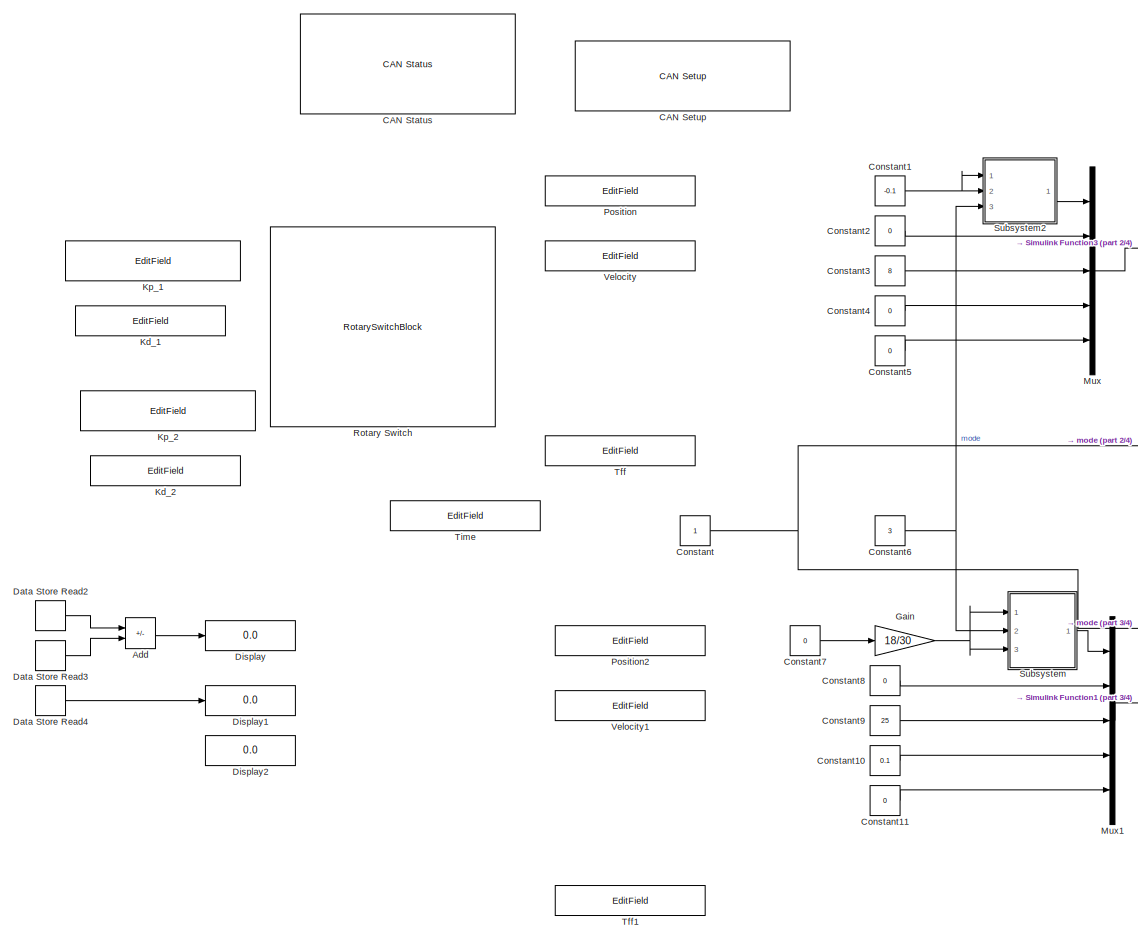
[diagram: root canvas - part 1/4, top left region]
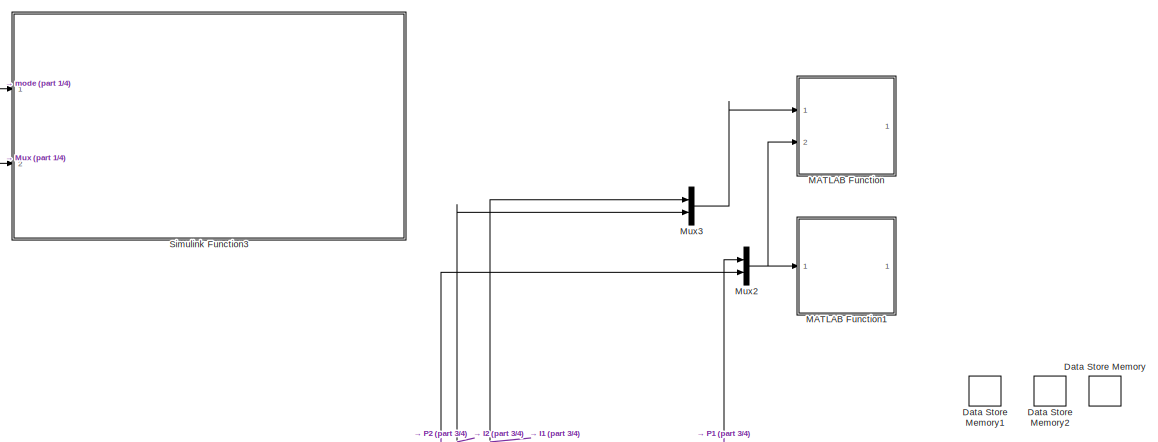
[diagram: root canvas - part 2/4, top right region]
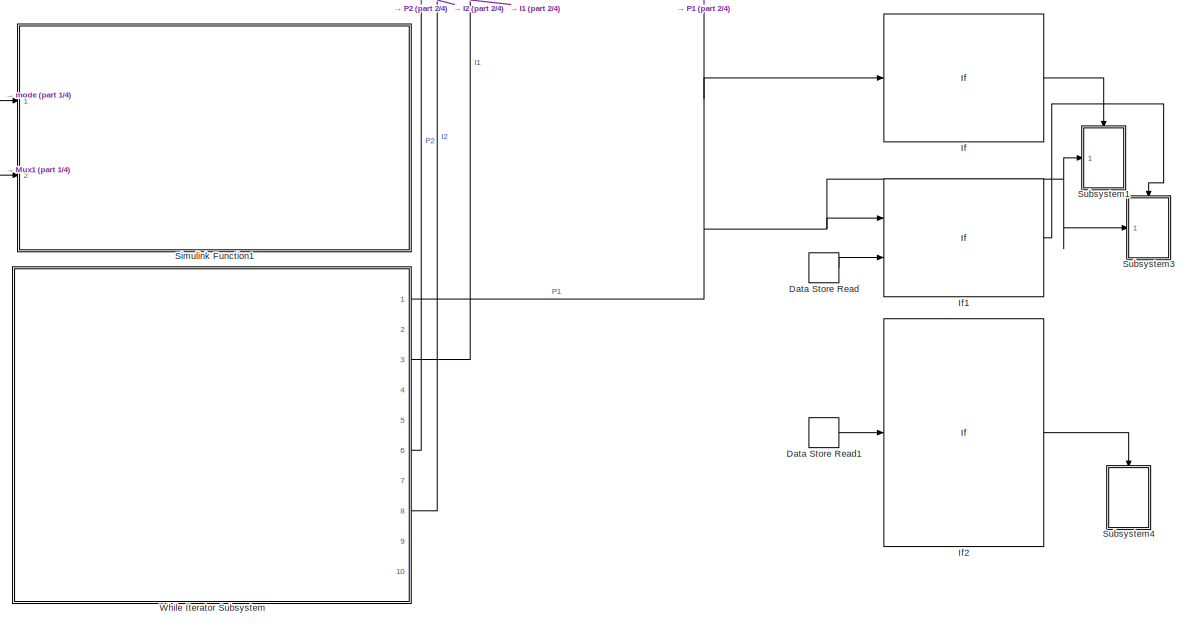
[diagram: root canvas - part 3/4, middle right region]
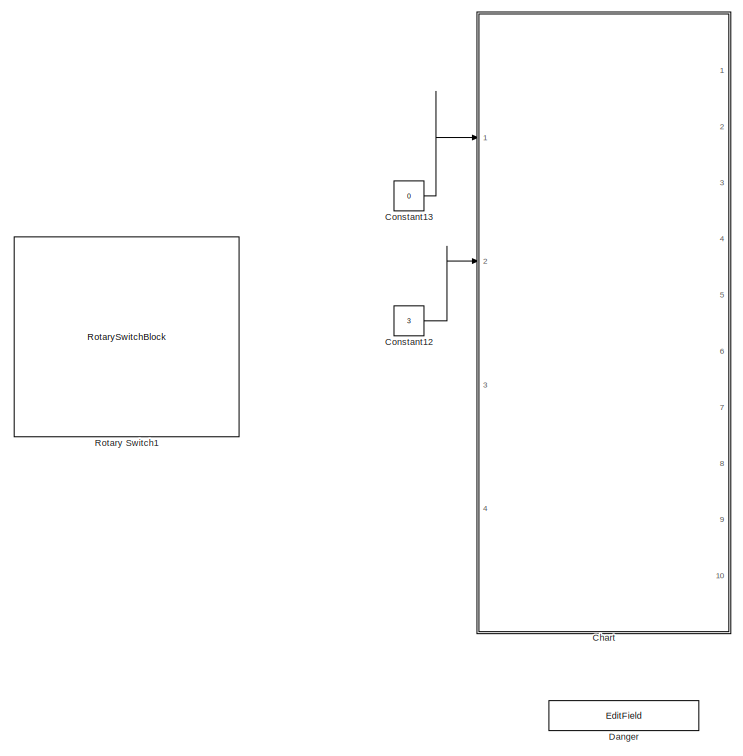
[diagram: root canvas - part 4/4, bottom left region]
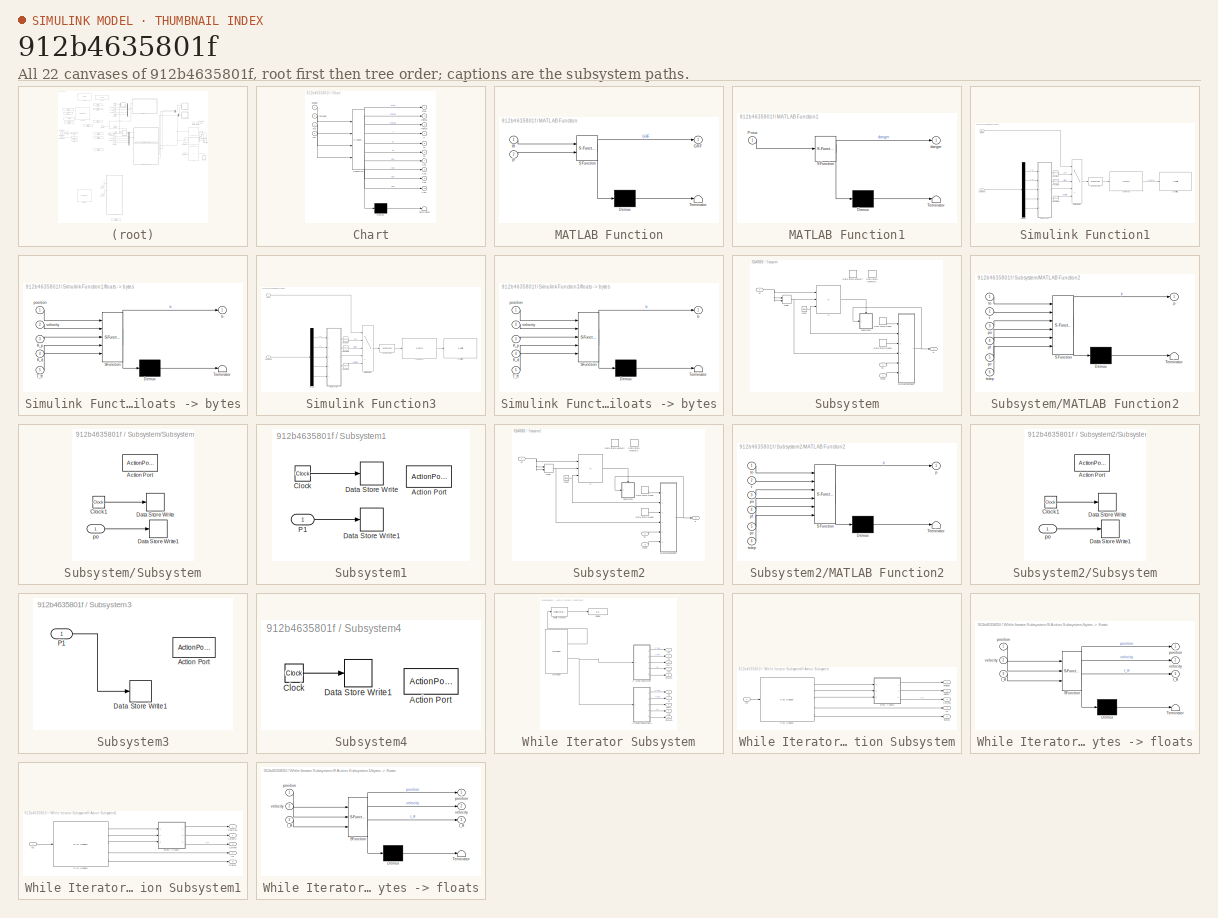
[diagram: thumbnail index - all 22 canvases of the model, root first then tree order]
MODEL slx_912b4635801f
KIND model
CONFIG AbsTol = auto
CONFIG EnableMultiTasking = off
CONFIG FixedStep = .001
CONFIG MaxStep = auto
CONFIG MinStep = auto
CONFIG RelTol = 1e-3
CONFIG SampleTimeConstraint = Unconstrained
CONFIG SolverName = FixedStepAuto
CONFIG StartTime = 0.0
CONFIG StopTime = inf
BLOCK [Sum] Add
  IconShape = rectangular
  Inputs = +-
  Ports = [2, 1]
BLOCK [Reference] CAN Setup   REF=speedgoatlib_IO691/CAN Setup 
  Ports = []
  SourceBlock = speedgoatlib_IO691/CAN Setup
  SourceProductName = Simulink Real-Time: Speedgoat I/O Blockset
  SourceType = setup_IO691
BLOCK [Reference] CAN Status  REF=speedgoatlib_IO691/CAN Status
  Ports = []
  SourceBlock = speedgoatlib_IO691/CAN Status
  SourceProductName = Simulink Real-Time: Speedgoat I/O Blockset
  SourceType = status_IO691
  UserDataPersistent = on
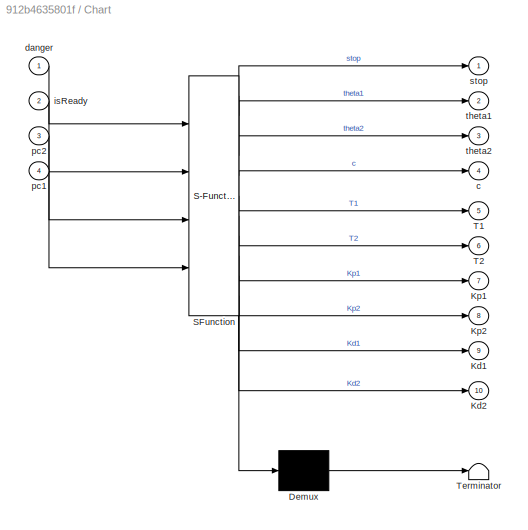
BLOCK [SubSystem] Chart
  ErrorFcn = Stateflow.Translate.translate
  PermitHierarchicalResolution = ExplicitOnly
  PortSchema = {"entries":[{"content":{"sides":[{"content":{"connectorIds":["In1","In2","In3","In4"]},"type":"ConnectorPlacement.EquallySpacedRectSide","uuid":"09499f21-f50c-4ce4-914e-8b9942bcc246"},{"content":{"connectorIds":["Out2","Out7","Out9","Out5","Out1","Out4","Out3","Out8","Out10","Out6"],"side":"RIGHT"},"type":"ConnectorPlacement.EquallySpacedRectSide","uuid":"b935e908-ace3-4dfb-ad6d-08dfed6ffdb3"},{"c...<+322ch>
  Ports = [4, 10]
  RequestExecContextInheritance = off
  SFBlockType = Chart
  TreatAsAtomicUnit = on
BLOCK [Demux] Chart/ Demux 
  Outputs = 1
  Ports = [1, 1]
BLOCK [S-Function] Chart/ SFunction 
  EnableBusSupport = on
  FunctionName = sf_sfun
  PortCounts = [4 11]
  Ports = [4, 11]
  SFcnIsStateOwnerBlock = off
  SFunctionDeploymentMode = off
  Tag = Stateflow S-Function 8
BLOCK [Terminator] Chart/ Terminator 
BLOCK [Outport] Chart/Kd1
  Port = 9
BLOCK [Outport] Chart/Kd2
  Port = 10
BLOCK [Outport] Chart/Kp1
  Port = 7
BLOCK [Outport] Chart/Kp2
  Port = 8
BLOCK [Outport] Chart/T1
  Port = 5
BLOCK [Outport] Chart/T2
  Port = 6
BLOCK [Outport] Chart/c
  Port = 4
BLOCK [Inport] Chart/danger
BLOCK [Inport] Chart/isReady
  Port = 2
BLOCK [Inport] Chart/pc1
  Port = 4
BLOCK [Inport] Chart/pc2
  Port = 3
BLOCK [Outport] Chart/stop
BLOCK [Outport] Chart/theta1
  Port = 2
BLOCK [Outport] Chart/theta2
  Port = 3
BLOCK [Constant] Constant
BLOCK [Constant] Constant1
  Value = -0.1
BLOCK [Constant] Constant10
  Value = 0.1
BLOCK [Constant] Constant11
  Value = 0
BLOCK [Constant] Constant12
  Value = 3
BLOCK [Constant] Constant13
  Value = 0
BLOCK [Constant] Constant2
  Value = 0
BLOCK [Constant] Constant3
  Value = 8
BLOCK [Constant] Constant4
  Value = 0
BLOCK [Constant] Constant5
  Value = 0
BLOCK [Constant] Constant6
  Value = 3
BLOCK [Constant] Constant7
  Value = 0
BLOCK [Constant] Constant8
  Value = 0
BLOCK [Constant] Constant9
  Value = 25
BLOCK [EditField] Danger
  Alignment = Center
  LabelPosition = Hide
  ShowInitialText = on
BLOCK [DataStoreMemory] Data Store Memory
  DataStoreName = to
  ReadBeforeWriteMsg = warning
  ShowAdditionalParam = off
  WriteAfterReadMsg = warning
  WriteAfterWriteMsg = warning
BLOCK [DataStoreMemory] Data Store Memory1
  DataStoreName = OS
  ReadBeforeWriteMsg = warning
  ShowAdditionalParam = off
  WriteAfterReadMsg = warning
  WriteAfterWriteMsg = warning
BLOCK [DataStoreMemory] Data Store Memory2
  DataStoreName = tf
  ReadBeforeWriteMsg = warning
  ShowAdditionalParam = off
  WriteAfterReadMsg = warning
  WriteAfterWriteMsg = warning
BLOCK [DataStoreRead] Data Store Read
  DataStoreName = OS
  IndexOptions = Index vector (dialog)
  Indices = 1
  OutputSizes = 1
  Ports = [0, 1]
BLOCK [DataStoreRead] Data Store Read1
  DataStoreName = OS
  IndexOptions = Index vector (dialog)
  Indices = 1
  OutputSizes = 1
  Ports = [0, 1]
BLOCK [DataStoreRead] Data Store Read2
  DataStoreName = tf
  IndexOptions = Index vector (dialog)
  Indices = 1
  OutputSizes = 1
  Ports = [0, 1]
BLOCK [DataStoreRead] Data Store Read3
  DataStoreName = to
  IndexOptions = Index vector (dialog)
  Indices = 1
  OutputSizes = 1
  Ports = [0, 1]
BLOCK [DataStoreRead] Data Store Read4
  DataStoreName = OS
  IndexOptions = Index vector (dialog)
  Indices = 1
  OutputSizes = 1
  Ports = [0, 1]
BLOCK [Display] Display
  Decimation = 1
  Ports = [1]
BLOCK [Display] Display1
  Decimation = 1
  Ports = [1]
BLOCK [Display] Display2
  Decimation = 1
  Ports = [1]
BLOCK [Gain] Gain
  Gain = 18/30
BLOCK [If] If
  Ports = [1, 1]
  ShowElse = off
BLOCK [If] If1
  IfExpression = u1 < u2
  NumInputs = 2
  Ports = [2, 1]
  ShowElse = off
BLOCK [If] If2
  Ports = [1, 1]
  ShowElse = off
BLOCK [EditField] Kd_1
  Alignment = Center
  LabelPosition = Hide
  ShowInitialText = on
BLOCK [EditField] Kd_2
  Alignment = Center
  LabelPosition = Hide
  ShowInitialText = on
BLOCK [EditField] Kp_1
  Alignment = Center
  LabelPosition = Hide
  ShowInitialText = on
BLOCK [EditField] Kp_2
  Alignment = Center
  LabelPosition = Hide
  ShowInitialText = on
BLOCK [SubSystem] MATLAB Function
  ErrorFcn = Stateflow.Translate.translate
  PermitHierarchicalResolution = ExplicitOnly
  Ports = [2, 1]
  RequestExecContextInheritance = off
  SFBlockType = MATLAB Function
  TreatAsAtomicUnit = on
BLOCK [Demux] MATLAB Function/ Demux 
  Outputs = 1
  Ports = [1, 1]
BLOCK [S-Function] MATLAB Function/ SFunction 
  EnableBusSupport = on
  FunctionName = sf_sfun
  PortCounts = [2 2]
  Ports = [2, 2]
  SFcnIsStateOwnerBlock = off
  SFunctionDeploymentMode = off
  Tag = Stateflow S-Function 4
BLOCK [Terminator] MATLAB Function/ Terminator 
BLOCK [Outport] MATLAB Function/GRF
BLOCK [Inport] MATLAB Function/Iff
BLOCK [Inport] MATLAB Function/P
  Port = 2
BLOCK [SubSystem] MATLAB Function1
  ErrorFcn = Stateflow.Translate.translate
  PermitHierarchicalResolution = ExplicitOnly
  Ports = [1, 1]
  RequestExecContextInheritance = off
  SFBlockType = MATLAB Function
  TreatAsAtomicUnit = on
BLOCK [Demux] MATLAB Function1/ Demux 
  Outputs = 1
  Ports = [1, 1]
BLOCK [S-Function] MATLAB Function1/ SFunction 
  EnableBusSupport = on
  FunctionName = sf_sfun
  PortCounts = [1 2]
  Ports = [1, 2]
  SFcnIsStateOwnerBlock = off
  SFunctionDeploymentMode = off
  Tag = Stateflow S-Function 6
BLOCK [Terminator] MATLAB Function1/ Terminator 
BLOCK [Inport] MATLAB Function1/Pmux
BLOCK [Outport] MATLAB Function1/danger
BLOCK [Mux] Mux
  DisplayOption = bar
  Inputs = 5
  Ports = [5, 1]
BLOCK [Mux] Mux1
  DisplayOption = bar
  Inputs = 5
  Ports = [5, 1]
BLOCK [Mux] Mux2
  DisplayOption = bar
  Inputs = 2
  Ports = [2, 1]
BLOCK [Mux] Mux3
  DisplayOption = bar
  Inputs = 2
  Ports = [2, 1]
BLOCK [EditField] Position
  Alignment = Center
  LabelPosition = Hide
  ShowInitialText = on
BLOCK [EditField] Position2
  Alignment = Center
  LabelPosition = Hide
  ShowInitialText = on
BLOCK [RotarySwitchBlock] Rotary Switch
BLOCK [RotarySwitchBlock] Rotary Switch1
BLOCK [SubSystem] Simulink Function1
  Ports = [2]
  RequestExecContextInheritance = off
  TreatAsAtomicUnit = on
BLOCK [Reference] Simulink Function1/Byte Packing  REF=slrealtimeutilitieslib/Byte Packing
  Ports = [1, 1]
  SourceBlock = slrealtimeutilitieslib/Byte Packing
  SourceProductBaseCode = XP
  SourceType = slrealtimebytepacking
BLOCK [Reference] Simulink Function1/CAN Pack1  REF=canmsglib/CAN Pack
  Ports = [1, 1]
  SourceBlock = canmsglib/CAN Pack
  SourceProductBaseCode = ME,XP,VN
  SourceType = CAN Pack
BLOCK [Reference] Simulink Function1/CAN Write1  REF=speedgoatlib_IO691/CAN Write
  Ports = [1]
  SourceBlock = speedgoatlib_IO691/CAN Write
  SourceProductName = Simulink Real-Time: Speedgoat I/O Blockset
  SourceType = write_IO691
BLOCK [Inport] Simulink Function1/Command
  Port = 2
BLOCK [Constant] Simulink Function1/Constant
  Value = [0xFF, 0xFF, 0xFF, 0xFF, 0xFF, 0xFF, 0xFF, 0xFE]
BLOCK [Constant] Simulink Function1/Constant1
  Value = [0xFF, 0xFF, 0xFF, 0xFF, 0xFF, 0xFF, 0xFF, 0xFC]
BLOCK [Constant] Simulink Function1/Constant2
  Value = [0xFF, 0xFF, 0xFF, 0xFF, 0xFF, 0xFF, 0xFF, 0xFD]
BLOCK [Demux] Simulink Function1/Demux
  Outputs = 5
  Ports = [1, 5]
BLOCK [Inport] Simulink Function1/Mode
BLOCK [MultiPortSwitch] Simulink Function1/Multiport Switch
  InputSameDT = off
  Inputs = 4
  Ports = [5, 1]
  SaturateOnIntegerOverflow = off
BLOCK [SubSystem] Simulink Function1/floats -> bytes
  ErrorFcn = Stateflow.Translate.translate
  PermitHierarchicalResolution = ExplicitOnly
  Ports = [5, 1]
  RequestExecContextInheritance = off
  SFBlockType = MATLAB Function
  TreatAsAtomicUnit = on
BLOCK [Demux] Simulink Function1/floats -> bytes/ Demux 
  Outputs = 1
  Ports = [1, 1]
BLOCK [S-Function] Simulink Function1/floats -> bytes/ SFunction 
  EnableBusSupport = on
  FunctionName = sf_sfun
  PortCounts = [5 2]
  Ports = [5, 2]
  SFcnIsStateOwnerBlock = off
  SFunctionDeploymentMode = off
  Tag = Stateflow S-Function 3
BLOCK [Terminator] Simulink Function1/floats -> bytes/ Terminator 
BLOCK [Inport] Simulink Function1/floats -> bytes/K_d
  Port = 4
BLOCK [Inport] Simulink Function1/floats -> bytes/K_p
  Port = 3
BLOCK [Inport] Simulink Function1/floats -> bytes/T_ff
  Port = 5
BLOCK [Outport] Simulink Function1/floats -> bytes/b
BLOCK [Inport] Simulink Function1/floats -> bytes/position
BLOCK [Inport] Simulink Function1/floats -> bytes/velocity
  Port = 2
BLOCK [SubSystem] Simulink Function3
  Ports = [2]
  RequestExecContextInheritance = off
  TreatAsAtomicUnit = on
BLOCK [Reference] Simulink Function3/Byte Packing  REF=slrealtimeutilitieslib/Byte Packing
  Ports = [1, 1]
  SourceBlock = slrealtimeutilitieslib/Byte Packing
  SourceProductBaseCode = XP
  SourceType = slrealtimebytepacking
BLOCK [Reference] Simulink Function3/CAN Pack1  REF=canmsglib/CAN Pack
  Ports = [1, 1]
  SourceBlock = canmsglib/CAN Pack
  SourceProductBaseCode = ME,XP,VN
  SourceType = CAN Pack
BLOCK [Reference] Simulink Function3/CAN Write1  REF=speedgoatlib_IO691/CAN Write
  Ports = [1]
  SourceBlock = speedgoatlib_IO691/CAN Write
  SourceProductName = Simulink Real-Time: Speedgoat I/O Blockset
  SourceType = write_IO691
BLOCK [Inport] Simulink Function3/Command
  Port = 2
BLOCK [Constant] Simulink Function3/Constant
  Value = [0xFF, 0xFF, 0xFF, 0xFF, 0xFF, 0xFF, 0xFF, 0xFE]
BLOCK [Constant] Simulink Function3/Constant1
  Value = [0xFF, 0xFF, 0xFF, 0xFF, 0xFF, 0xFF, 0xFF, 0xFC]
BLOCK [Constant] Simulink Function3/Constant2
  Value = [0xFF, 0xFF, 0xFF, 0xFF, 0xFF, 0xFF, 0xFF, 0xFD]
BLOCK [Demux] Simulink Function3/Demux
  Outputs = 5
  Ports = [1, 5]
BLOCK [Inport] Simulink Function3/Mode
BLOCK [MultiPortSwitch] Simulink Function3/Multiport Switch
  InputSameDT = off
  Inputs = 4
  Ports = [5, 1]
  SaturateOnIntegerOverflow = off
BLOCK [SubSystem] Simulink Function3/floats -> bytes
  ErrorFcn = Stateflow.Translate.translate
  PermitHierarchicalResolution = ExplicitOnly
  Ports = [5, 1]
  RequestExecContextInheritance = off
  SFBlockType = MATLAB Function
  TreatAsAtomicUnit = on
BLOCK [Demux] Simulink Function3/floats -> bytes/ Demux 
  Outputs = 1
  Ports = [1, 1]
BLOCK [S-Function] Simulink Function3/floats -> bytes/ SFunction 
  EnableBusSupport = on
  FunctionName = sf_sfun
  PortCounts = [5 2]
  Ports = [5, 2]
  SFcnIsStateOwnerBlock = off
  SFunctionDeploymentMode = off
  Tag = Stateflow S-Function 5
BLOCK [Terminator] Simulink Function3/floats -> bytes/ Terminator 
BLOCK [Inport] Simulink Function3/floats -> bytes/K_d
  Port = 4
BLOCK [Inport] Simulink Function3/floats -> bytes/K_p
  Port = 3
BLOCK [Inport] Simulink Function3/floats -> bytes/T_ff
  Port = 5
BLOCK [Outport] Simulink Function3/floats -> bytes/b
BLOCK [Inport] Simulink Function3/floats -> bytes/position
BLOCK [Inport] Simulink Function3/floats -> bytes/velocity
  Port = 2
BLOCK [SubSystem] Subsystem
  Ports = [3, 1]
  RequestExecContextInheritance = off
BLOCK [Clock] Subsystem/Clock
BLOCK [DataStoreMemory] Subsystem/Data Store Memory
  DataStoreName = to
  ReadBeforeWriteMsg = warning
  ShowAdditionalParam = off
  WriteAfterReadMsg = warning
  WriteAfterWriteMsg = warning
BLOCK [DataStoreMemory] Subsystem/Data Store Memory1
  DataStoreName = po
  ReadBeforeWriteMsg = warning
  ShowAdditionalParam = off
  WriteAfterReadMsg = warning
  WriteAfterWriteMsg = warning
BLOCK [DataStoreRead] Subsystem/Data Store Read
  DataStoreName = to
  IndexOptions = Index vector (dialog)
  Indices = 1
  OutputSizes = 1
  Ports = [0, 1]
BLOCK [DataStoreRead] Subsystem/Data Store Read1
  DataStoreName = po
  IndexOptions = Index vector (dialog)
  Indices = 1
  OutputSizes = 1
  Ports = [0, 1]
BLOCK [Delay] Subsystem/Delay
  DelayLength = 1
  InitialConditionSource = Input port
  InputPortMap = u0,p4
  Ports = [2, 1]
BLOCK [If] Subsystem/If
  IfExpression = u1 ~= u2 | u3<.1
  NumInputs = 3
  Ports = [3, 1]
  ShowElse = off
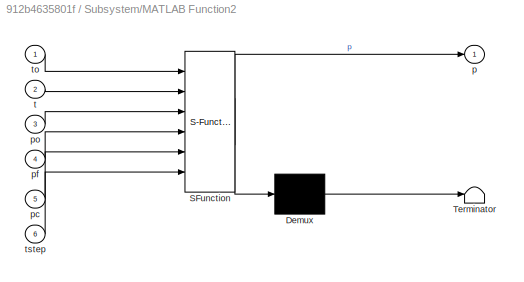
BLOCK [SubSystem] Subsystem/MATLAB Function2
  ErrorFcn = Stateflow.Translate.translate
  PermitHierarchicalResolution = ExplicitOnly
  Ports = [6, 1]
  RequestExecContextInheritance = off
  SFBlockType = MATLAB Function
  TreatAsAtomicUnit = on
BLOCK [Demux] Subsystem/MATLAB Function2/ Demux 
  Outputs = 1
  Ports = [1, 1]
BLOCK [S-Function] Subsystem/MATLAB Function2/ SFunction 
  EnableBusSupport = on
  FunctionName = sf_sfun
  PortCounts = [6 2]
  Ports = [6, 2]
  SFcnIsStateOwnerBlock = off
  SFunctionDeploymentMode = off
  Tag = Stateflow S-Function 9
BLOCK [Terminator] Subsystem/MATLAB Function2/ Terminator 
BLOCK [Outport] Subsystem/MATLAB Function2/p
BLOCK [Inport] Subsystem/MATLAB Function2/pc
  Port = 5
BLOCK [Inport] Subsystem/MATLAB Function2/pf
  Port = 4
BLOCK [Inport] Subsystem/MATLAB Function2/po
  Port = 3
BLOCK [Inport] Subsystem/MATLAB Function2/t
  Port = 2
BLOCK [Inport] Subsystem/MATLAB Function2/to
BLOCK [Inport] Subsystem/MATLAB Function2/tstep
  Port = 6
BLOCK [SubSystem] Subsystem/Subsystem
  Ports = [1, 0, 0, 0, 0, 0, 0, 1]
  RequestExecContextInheritance = off
BLOCK [ActionPort] Subsystem/Subsystem/Action Port
  ActionPortLabel = if(u1 ~= u2 | u3<.1)
BLOCK [Clock] Subsystem/Subsystem/Clock1
BLOCK [DataStoreWrite] Subsystem/Subsystem/Data Store Write
  DataStoreName = to
  IndexOptions = Index vector (dialog)
  Indices = 1
  OutputSizes = 1
  Ports = [1]
BLOCK [DataStoreWrite] Subsystem/Subsystem/Data Store Write1
  DataStoreName = po
  IndexOptions = Index vector (dialog)
  Indices = 1
  OutputSizes = 1
  Ports = [1]
BLOCK [Inport] Subsystem/Subsystem/po
BLOCK [Outport] Subsystem/p
BLOCK [Inport] Subsystem/pc
BLOCK [Inport] Subsystem/pf
  Port = 3
BLOCK [Inport] Subsystem/tstep
  Port = 2
BLOCK [SubSystem] Subsystem1
  Ports = [1, 0, 0, 0, 0, 0, 0, 1]
  RequestExecContextInheritance = off
BLOCK [ActionPort] Subsystem1/Action Port
  ActionPortLabel = if(u1 > 0)
BLOCK [Clock] Subsystem1/Clock
BLOCK [DataStoreWrite] Subsystem1/Data Store Write
  DataStoreName = to
  IndexOptions = Index vector (dialog)
  Indices = 1
  OutputSizes = 1
  Ports = [1]
BLOCK [DataStoreWrite] Subsystem1/Data Store Write1
  DataStoreName = OS
  IndexOptions = Index vector (dialog)
  Indices = 1
  OutputSizes = 1
  Ports = [1]
BLOCK [Inport] Subsystem1/P1
BLOCK [SubSystem] Subsystem2
  Ports = [3, 1]
  RequestExecContextInheritance = off
BLOCK [Clock] Subsystem2/Clock
BLOCK [DataStoreMemory] Subsystem2/Data Store Memory
  DataStoreName = to
  ReadBeforeWriteMsg = warning
  ShowAdditionalParam = off
  WriteAfterReadMsg = warning
  WriteAfterWriteMsg = warning
BLOCK [DataStoreMemory] Subsystem2/Data Store Memory1
  DataStoreName = po
  ReadBeforeWriteMsg = warning
  ShowAdditionalParam = off
  WriteAfterReadMsg = warning
  WriteAfterWriteMsg = warning
BLOCK [DataStoreRead] Subsystem2/Data Store Read
  DataStoreName = to
  IndexOptions = Index vector (dialog)
  Indices = 1
  OutputSizes = 1
  Ports = [0, 1]
BLOCK [DataStoreRead] Subsystem2/Data Store Read1
  DataStoreName = po
  IndexOptions = Index vector (dialog)
  Indices = 1
  OutputSizes = 1
  Ports = [0, 1]
BLOCK [Delay] Subsystem2/Delay
  DelayLength = 1
  InitialConditionSource = Input port
  InputPortMap = u0,p4
  Ports = [2, 1]
BLOCK [If] Subsystem2/If
  IfExpression = u1 ~= u2 | u3<.1
  NumInputs = 3
  Ports = [3, 1]
  ShowElse = off
BLOCK [SubSystem] Subsystem2/MATLAB Function2
  ErrorFcn = Stateflow.Translate.translate
  PermitHierarchicalResolution = ExplicitOnly
  Ports = [6, 1]
  RequestExecContextInheritance = off
  SFBlockType = MATLAB Function
  TreatAsAtomicUnit = on
BLOCK [Demux] Subsystem2/MATLAB Function2/ Demux 
  Outputs = 1
  Ports = [1, 1]
BLOCK [S-Function] Subsystem2/MATLAB Function2/ SFunction 
  EnableBusSupport = on
  FunctionName = sf_sfun
  PortCounts = [6 2]
  Ports = [6, 2]
  SFcnIsStateOwnerBlock = off
  SFunctionDeploymentMode = off
  Tag = Stateflow S-Function 7
BLOCK [Terminator] Subsystem2/MATLAB Function2/ Terminator 
BLOCK [Outport] Subsystem2/MATLAB Function2/p
BLOCK [Inport] Subsystem2/MATLAB Function2/pc
  Port = 5
BLOCK [Inport] Subsystem2/MATLAB Function2/pf
  Port = 4
BLOCK [Inport] Subsystem2/MATLAB Function2/po
  Port = 3
BLOCK [Inport] Subsystem2/MATLAB Function2/t
  Port = 2
BLOCK [Inport] Subsystem2/MATLAB Function2/to
BLOCK [Inport] Subsystem2/MATLAB Function2/tstep
  Port = 6
BLOCK [SubSystem] Subsystem2/Subsystem
  Ports = [1, 0, 0, 0, 0, 0, 0, 1]
  RequestExecContextInheritance = off
BLOCK [ActionPort] Subsystem2/Subsystem/Action Port
  ActionPortLabel = if(u1 ~= u2 | u3<.1)
BLOCK [Clock] Subsystem2/Subsystem/Clock1
BLOCK [DataStoreWrite] Subsystem2/Subsystem/Data Store Write
  DataStoreName = to
  IndexOptions = Index vector (dialog)
  Indices = 1
  OutputSizes = 1
  Ports = [1]
BLOCK [DataStoreWrite] Subsystem2/Subsystem/Data Store Write1
  DataStoreName = po
  IndexOptions = Index vector (dialog)
  Indices = 1
  OutputSizes = 1
  Ports = [1]
BLOCK [Inport] Subsystem2/Subsystem/po
BLOCK [Outport] Subsystem2/p
BLOCK [Inport] Subsystem2/pc
  Port = 2
BLOCK [Inport] Subsystem2/pf
BLOCK [Inport] Subsystem2/tstep
  Port = 3
BLOCK [SubSystem] Subsystem3
  Ports = [1, 0, 0, 0, 0, 0, 0, 1]
  RequestExecContextInheritance = off
BLOCK [ActionPort] Subsystem3/Action Port
  ActionPortLabel = if(u1 < u2)
BLOCK [DataStoreWrite] Subsystem3/Data Store Write1
  DataStoreName = OS
  IndexOptions = Index vector (dialog)
  Indices = 1
  OutputSizes = 1
  Ports = [1]
BLOCK [Inport] Subsystem3/P1
BLOCK [SubSystem] Subsystem4
  Ports = [0, 0, 0, 0, 0, 0, 0, 1]
  RequestExecContextInheritance = off
BLOCK [ActionPort] Subsystem4/Action Port
  ActionPortLabel = if(u1 > 0)
BLOCK [Clock] Subsystem4/Clock
BLOCK [DataStoreWrite] Subsystem4/Data Store Write1
  DataStoreName = tf
  IndexOptions = Index vector (dialog)
  Indices = 1
  OutputSizes = 1
  Ports = [1]
BLOCK [EditField] Tff
  Alignment = Center
  LabelPosition = Hide
  ShowInitialText = on
BLOCK [EditField] Tff1
  Alignment = Center
  LabelPosition = Hide
  ShowInitialText = on
BLOCK [EditField] Time
  Alignment = Center
  LabelPosition = Hide
  ShowInitialText = on
BLOCK [EditField] Velocity
  Alignment = Center
  LabelPosition = Hide
  ShowInitialText = on
BLOCK [EditField] Velocity1
  Alignment = Center
  LabelPosition = Hide
  ShowInitialText = on
BLOCK [SubSystem] While Iterator Subsystem
  Ports = [0, 10]
  RequestExecContextInheritance = off
  TreatAsAtomicUnit = on
BLOCK [Reference] While Iterator Subsystem/CAN Read  REF=speedgoatlib_IO691/CAN Read
  Ports = [0, 2]
  SourceBlock = speedgoatlib_IO691/CAN Read
  SourceProductName = Simulink Real-Time: Speedgoat I/O Blockset
  SourceType = read_IO691
BLOCK [Outport] While Iterator Subsystem/Curr1
  Port = 3
BLOCK [Outport] While Iterator Subsystem/Curr2
  Port = 8
BLOCK [Display] While Iterator Subsystem/Display
  Decimation = 1
  Ports = [1]
BLOCK [Outport] While Iterator Subsystem/ID1
  Port = 4
BLOCK [Outport] While Iterator Subsystem/ID2
  Port = 9
BLOCK [SubSystem] While Iterator Subsystem/If Action Subsystem
  Ports = [1, 5]
  RequestExecContextInheritance = off
  TreatAsAtomicUnit = on
BLOCK [Reference] While Iterator Subsystem/If Action Subsystem/CAN Unpack  REF=canmsglib/CAN Unpack
  Ports = [1, 5]
  SourceBlock = canmsglib/CAN Unpack
  SourceProductBaseCode = ME,XP,VN
  SourceType = CAN Unpack
BLOCK [Outport] While Iterator Subsystem/If Action Subsystem/Current
  Port = 3
BLOCK [Outport] While Iterator Subsystem/If Action Subsystem/ID
  Port = 4
BLOCK [Inport] While Iterator Subsystem/If Action Subsystem/In1
BLOCK [Outport] While Iterator Subsystem/If Action Subsystem/Position
BLOCK [Outport] While Iterator Subsystem/If Action Subsystem/Status
  Port = 5
BLOCK [Outport] While Iterator Subsystem/If Action Subsystem/Velocity
  Port = 2
BLOCK [SubSystem] While Iterator Subsystem/If Action Subsystem/bytes -> floats
  ErrorFcn = Stateflow.Translate.translate
  PermitHierarchicalResolution = ExplicitOnly
  Ports = [3, 3]
  RequestExecContextInheritance = off
  SFBlockType = MATLAB Function
  TreatAsAtomicUnit = on
BLOCK [Demux] While Iterator Subsystem/If Action Subsystem/bytes -> floats/ Demux 
  Outputs = 1
  Ports = [1, 1]
BLOCK [S-Function] While Iterator Subsystem/If Action Subsystem/bytes -> floats/ SFunction 
  EnableBusSupport = on
  FunctionName = sf_sfun
  PortCounts = [3 4]
  Ports = [3, 4]
  SFcnIsStateOwnerBlock = off
  SFunctionDeploymentMode = off
  Tag = Stateflow S-Function 2
BLOCK [Terminator] While Iterator Subsystem/If Action Subsystem/bytes -> floats/ Terminator 
BLOCK [Outport] While Iterator Subsystem/If Action Subsystem/bytes -> floats/I_ff
  Port = 3
BLOCK [Inport] While Iterator Subsystem/If Action Subsystem/bytes -> floats/I_ff 
  Port = 3
BLOCK [Outport] While Iterator Subsystem/If Action Subsystem/bytes -> floats/position
BLOCK [Inport] While Iterator Subsystem/If Action Subsystem/bytes -> floats/position 
BLOCK [Outport] While Iterator Subsystem/If Action Subsystem/bytes -> floats/velocity
  Port = 2
BLOCK [Inport] While Iterator Subsystem/If Action Subsystem/bytes -> floats/velocity 
  Port = 2
BLOCK [SubSystem] While Iterator Subsystem/If Action Subsystem1
  Ports = [1, 5]
  RequestExecContextInheritance = off
  TreatAsAtomicUnit = on
BLOCK [Reference] While Iterator Subsystem/If Action Subsystem1/CAN Unpack  REF=canmsglib/CAN Unpack
  Ports = [1, 5]
  SourceBlock = canmsglib/CAN Unpack
  SourceProductBaseCode = ME,XP,VN
  SourceType = CAN Unpack
BLOCK [Outport] While Iterator Subsystem/If Action Subsystem1/Current
  Port = 3
BLOCK [Outport] While Iterator Subsystem/If Action Subsystem1/ID
  Port = 4
BLOCK [Inport] While Iterator Subsystem/If Action Subsystem1/In1
BLOCK [Outport] While Iterator Subsystem/If Action Subsystem1/Position
BLOCK [Outport] While Iterator Subsystem/If Action Subsystem1/Status
  Port = 5
BLOCK [Outport] While Iterator Subsystem/If Action Subsystem1/Velocity
  Port = 2
BLOCK [SubSystem] While Iterator Subsystem/If Action Subsystem1/bytes -> floats
  ErrorFcn = Stateflow.Translate.translate
  PermitHierarchicalResolution = ExplicitOnly
  Ports = [3, 3]
  RequestExecContextInheritance = off
  SFBlockType = MATLAB Function
  TreatAsAtomicUnit = on
BLOCK [Demux] While Iterator Subsystem/If Action Subsystem1/bytes -> floats/ Demux 
  Outputs = 1
  Ports = [1, 1]
BLOCK [S-Function] While Iterator Subsystem/If Action Subsystem1/bytes -> floats/ SFunction 
  EnableBusSupport = on
  FunctionName = sf_sfun
  PortCounts = [3 4]
  Ports = [3, 4]
  SFcnIsStateOwnerBlock = off
  SFunctionDeploymentMode = off
  Tag = Stateflow S-Function 1
BLOCK [Terminator] While Iterator Subsystem/If Action Subsystem1/bytes -> floats/ Terminator 
BLOCK [Outport] While Iterator Subsystem/If Action Subsystem1/bytes -> floats/I_ff
  Port = 3
BLOCK [Inport] While Iterator Subsystem/If Action Subsystem1/bytes -> floats/I_ff 
  Port = 3
BLOCK [Outport] While Iterator Subsystem/If Action Subsystem1/bytes -> floats/position
BLOCK [Inport] While Iterator Subsystem/If Action Subsystem1/bytes -> floats/position 
BLOCK [Outport] While Iterator Subsystem/If Action Subsystem1/bytes -> floats/velocity
  Port = 2
BLOCK [Inport] While Iterator Subsystem/If Action Subsystem1/bytes -> floats/velocity 
  Port = 2
BLOCK [Outport] While Iterator Subsystem/P1
BLOCK [Outport] While Iterator Subsystem/P3
  Port = 6
BLOCK [Outport] While Iterator Subsystem/Status1
  Port = 5
BLOCK [Outport] While Iterator Subsystem/Status2
  Port = 10
BLOCK [Outport] While Iterator Subsystem/V1
  Port = 2
BLOCK [Outport] While Iterator Subsystem/V2
  Port = 7
BLOCK [WhileIterator] While Iterator Subsystem/While Iterator
  MaxIters = -1
  Ports = [1, 1]
  ResetStates = reset
  ShowIterationPort = on
  WhileBlockType = do-while
LINE Add:1 -> Display:1
LINE Constant10:1 -> Mux1:4
LINE Constant11:1 -> Mux1:5
LINE Constant12:1 -> Chart:2
LINE Constant13:1 -> Chart:1
NET Constant1:1 -> Subsystem2:1, Subsystem2:2
LINE Constant2:1 -> Mux:2
LINE Constant3:1 -> Mux:3
LINE Constant4:1 -> Mux:4
LINE Constant5:1 -> Mux:5
NET Constant6:1 -> Subsystem2:3, Subsystem:2
LINE Constant7:1 -> Gain:1
LINE Constant8:1 -> Mux1:2
LINE Constant9:1 -> Mux1:3
NET Constant:1 -> Simulink Function1:1, Simulink Function3:1
LINE Data Store Read1:1 -> If2:1
LINE Data Store Read2:1 -> Add:1
LINE Data Store Read3:1 -> Add:2
LINE Data Store Read4:1 -> Display1:1
LINE Data Store Read:1 -> If1:2
NET Gain:1 -> Subsystem:1, Subsystem:3
LINE If1:1 -> Subsystem3:ifaction
LINE If2:1 -> Subsystem4:ifaction
LINE If:1 -> Subsystem1:ifaction
LINE Mux1:1 -> Simulink Function1:2
NET Mux2:1 -> MATLAB Function1:1, MATLAB Function:2
LINE Mux3:1 -> MATLAB Function:1
LINE Mux:1 -> Simulink Function3:2
LINE Simulink Function1/Byte Packing:1 -> Simulink Function1/CAN Pack1:1
LINE Simulink Function1/CAN Pack1:1 -> Simulink Function1/CAN Write1:1
LINE Simulink Function1/Command:1 -> Simulink Function1/Demux:1
LINE Simulink Function1/Constant1:1 -> Simulink Function1/Multiport Switch:3
LINE Simulink Function1/Constant2:1 -> Simulink Function1/Multiport Switch:5
LINE Simulink Function1/Constant:1 -> Simulink Function1/Multiport Switch:2
LINE Simulink Function1/Demux:1 -> Simulink Function1/floats -> bytes:1
LINE Simulink Function1/Demux:2 -> Simulink Function1/floats -> bytes:2
LINE Simulink Function1/Demux:3 -> Simulink Function1/floats -> bytes:3
LINE Simulink Function1/Demux:4 -> Simulink Function1/floats -> bytes:4
LINE Simulink Function1/Demux:5 -> Simulink Function1/floats -> bytes:5
LINE Simulink Function1/Mode:1 -> Simulink Function1/Multiport Switch:1
LINE Simulink Function1/Multiport Switch:1 -> Simulink Function1/Byte Packing:1
LINE Simulink Function1/floats -> bytes:1 -> Simulink Function1/Multiport Switch:4
LINE Simulink Function3/Byte Packing:1 -> Simulink Function3/CAN Pack1:1
LINE Simulink Function3/CAN Pack1:1 -> Simulink Function3/CAN Write1:1
LINE Simulink Function3/Command:1 -> Simulink Function3/Demux:1
LINE Simulink Function3/Constant1:1 -> Simulink Function3/Multiport Switch:3
LINE Simulink Function3/Constant2:1 -> Simulink Function3/Multiport Switch:5
LINE Simulink Function3/Constant:1 -> Simulink Function3/Multiport Switch:2
LINE Simulink Function3/Demux:1 -> Simulink Function3/floats -> bytes:1
LINE Simulink Function3/Demux:2 -> Simulink Function3/floats -> bytes:2
LINE Simulink Function3/Demux:3 -> Simulink Function3/floats -> bytes:3
LINE Simulink Function3/Demux:4 -> Simulink Function3/floats -> bytes:4
LINE Simulink Function3/Demux:5 -> Simulink Function3/floats -> bytes:5
LINE Simulink Function3/Mode:1 -> Simulink Function3/Multiport Switch:1
LINE Simulink Function3/Multiport Switch:1 -> Simulink Function3/Byte Packing:1
LINE Simulink Function3/floats -> bytes:1 -> Simulink Function3/Multiport Switch:4
NET Subsystem/Clock:1 -> Subsystem/If:3, Subsystem/MATLAB Function2:2
LINE Subsystem/Data Store Read1:1 -> Subsystem/MATLAB Function2:3
LINE Subsystem/Data Store Read:1 -> Subsystem/MATLAB Function2:1
NET Subsystem/Delay:1 -> Subsystem/If:2, Subsystem/MATLAB Function2:4
LINE Subsystem/If:1 -> Subsystem/Subsystem:ifaction
NET Subsystem/MATLAB Function2:1 -> Subsystem/Subsystem:1, Subsystem/p:1
LINE Subsystem/Subsystem/Clock1:1 -> Subsystem/Subsystem/Data Store Write:1
LINE Subsystem/Subsystem/po:1 -> Subsystem/Subsystem/Data Store Write1:1
LINE Subsystem/pc:1 -> Subsystem/MATLAB Function2:5
NET Subsystem/pf:1 -> Subsystem/Delay:1, Subsystem/Delay:2, Subsystem/If:1
LINE Subsystem/tstep:1 -> Subsystem/MATLAB Function2:6
LINE Subsystem1/Clock:1 -> Subsystem1/Data Store Write:1
LINE Subsystem1/P1:1 -> Subsystem1/Data Store Write1:1
NET Subsystem2/Clock:1 -> Subsystem2/If:3, Subsystem2/MATLAB Function2:2
LINE Subsystem2/Data Store Read1:1 -> Subsystem2/MATLAB Function2:3
LINE Subsystem2/Data Store Read:1 -> Subsystem2/MATLAB Function2:1
NET Subsystem2/Delay:1 -> Subsystem2/If:2, Subsystem2/MATLAB Function2:4
LINE Subsystem2/If:1 -> Subsystem2/Subsystem:ifaction
NET Subsystem2/MATLAB Function2:1 -> Subsystem2/Subsystem:1, Subsystem2/p:1
LINE Subsystem2/Subsystem/Clock1:1 -> Subsystem2/Subsystem/Data Store Write:1
LINE Subsystem2/Subsystem/po:1 -> Subsystem2/Subsystem/Data Store Write1:1
LINE Subsystem2/pc:1 -> Subsystem2/MATLAB Function2:5
NET Subsystem2/pf:1 -> Subsystem2/Delay:1, Subsystem2/Delay:2, Subsystem2/If:1
LINE Subsystem2/tstep:1 -> Subsystem2/MATLAB Function2:6
LINE Subsystem2:1 -> Mux:1
LINE Subsystem3/P1:1 -> Subsystem3/Data Store Write1:1
LINE Subsystem4/Clock:1 -> Subsystem4/Data Store Write1:1
LINE Subsystem:1 -> Mux1:1
LINE While Iterator Subsystem/CAN Read:1 -> While Iterator Subsystem/While Iterator:1
NET While Iterator Subsystem/CAN Read:2 -> While Iterator Subsystem/If Action Subsystem1:1, While Iterator Subsystem/If Action Subsystem:1
LINE While Iterator Subsystem/If Action Subsystem/CAN Unpack:1 -> While Iterator Subsystem/If Action Subsystem/bytes -> floats:1
LINE While Iterator Subsystem/If Action Subsystem/CAN Unpack:2 -> While Iterator Subsystem/If Action Subsystem/bytes -> floats:2
LINE While Iterator Subsystem/If Action Subsystem/CAN Unpack:3 -> While Iterator Subsystem/If Action Subsystem/bytes -> floats:3
LINE While Iterator Subsystem/If Action Subsystem/CAN Unpack:4 -> While Iterator Subsystem/If Action Subsystem/ID:1
LINE While Iterator Subsystem/If Action Subsystem/CAN Unpack:5 -> While Iterator Subsystem/If Action Subsystem/Status:1
LINE While Iterator Subsystem/If Action Subsystem/In1:1 -> While Iterator Subsystem/If Action Subsystem/CAN Unpack:1
LINE While Iterator Subsystem/If Action Subsystem/bytes -> floats:1 -> While Iterator Subsystem/If Action Subsystem/Position:1
LINE While Iterator Subsystem/If Action Subsystem/bytes -> floats:2 -> While Iterator Subsystem/If Action Subsystem/Velocity:1
LINE While Iterator Subsystem/If Action Subsystem/bytes -> floats:3 -> While Iterator Subsystem/If Action Subsystem/Current:1
LINE While Iterator Subsystem/If Action Subsystem1/CAN Unpack:1 -> While Iterator Subsystem/If Action Subsystem1/bytes -> floats:1
LINE While Iterator Subsystem/If Action Subsystem1/CAN Unpack:2 -> While Iterator Subsystem/If Action Subsystem1/bytes -> floats:2
LINE While Iterator Subsystem/If Action Subsystem1/CAN Unpack:3 -> While Iterator Subsystem/If Action Subsystem1/bytes -> floats:3
LINE While Iterator Subsystem/If Action Subsystem1/CAN Unpack:4 -> While Iterator Subsystem/If Action Subsystem1/ID:1
LINE While Iterator Subsystem/If Action Subsystem1/CAN Unpack:5 -> While Iterator Subsystem/If Action Subsystem1/Status:1
LINE While Iterator Subsystem/If Action Subsystem1/In1:1 -> While Iterator Subsystem/If Action Subsystem1/CAN Unpack:1
LINE While Iterator Subsystem/If Action Subsystem1/bytes -> floats:1 -> While Iterator Subsystem/If Action Subsystem1/Position:1
LINE While Iterator Subsystem/If Action Subsystem1/bytes -> floats:2 -> While Iterator Subsystem/If Action Subsystem1/Velocity:1
LINE While Iterator Subsystem/If Action Subsystem1/bytes -> floats:3 -> While Iterator Subsystem/If Action Subsystem1/Current:1
LINE While Iterator Subsystem/If Action Subsystem1:1 -> While Iterator Subsystem/P3:1
LINE While Iterator Subsystem/If Action Subsystem1:2 -> While Iterator Subsystem/V2:1
LINE While Iterator Subsystem/If Action Subsystem1:3 -> While Iterator Subsystem/Curr2:1
LINE While Iterator Subsystem/If Action Subsystem1:4 -> While Iterator Subsystem/ID2:1
LINE While Iterator Subsystem/If Action Subsystem1:5 -> While Iterator Subsystem/Status2:1
LINE While Iterator Subsystem/If Action Subsystem:1 -> While Iterator Subsystem/P1:1
LINE While Iterator Subsystem/If Action Subsystem:2 -> While Iterator Subsystem/V1:1
LINE While Iterator Subsystem/If Action Subsystem:3 -> While Iterator Subsystem/Curr1:1
LINE While Iterator Subsystem/If Action Subsystem:4 -> While Iterator Subsystem/ID1:1
LINE While Iterator Subsystem/If Action Subsystem:5 -> While Iterator Subsystem/Status1:1
LINE While Iterator Subsystem/While Iterator:1 -> While Iterator Subsystem/Display:1
NET While Iterator Subsystem:1 -> If1:1, If:1, Mux2:1, Subsystem1:1, Subsystem3:1
LINE While Iterator Subsystem:3 -> Mux3:1
LINE While Iterator Subsystem:6 -> Mux2:2
LINE While Iterator Subsystem:8 -> Mux3:2
note: NET lines group one-source signal fan-out (src -> all destinations, sorted); 1:1 wires keep LINE
CHART While Iterator
Subsystem/If Action
Subsystem1/bytes -> floats states=1 transitions=1
  STATE_LABEL 'eML_blk_kernel()'
  STATE_LABEL 'SCRIPT:\nfunction [position, velocity, I_ff] = fcn(position, velocity, I_ff)\n\nP_MIN  =-95.5;  % [rad]\nP_MAX  = 95.5;  % [rad]\nV_MIN  =-45;    % [rad/s]\nV_MAX  = 45;    % [rad/s]\nI_MIN  =-40;    % []\nI_MAX  = 40;    % []\n\nposition = position*(P_MAX  - P_MIN)/65535+ P_MIN;\nvelocity = velocity*(V_MAX  - V_MIN)/4095 + V_MIN;\nI_ff     = I_ff*(I_MAX  - I_MIN)/4095 + I_MIN;'
CHART While Iterator
Subsystem/If Action
Subsystem/bytes -> floats states=1 transitions=1
  STATE_LABEL 'eML_blk_kernel()'
  STATE_LABEL 'SCRIPT:\nfunction [position, velocity, I_ff] = fcn(position, velocity, I_ff)\n\nP_MIN  =-95.5;  % [rad]\nP_MAX  = 95.5;  % [rad]\nV_MIN  =-45;    % [rad/s]\nV_MAX  = 45;    % [rad/s]\nI_MIN  =-40;    % []\nI_MAX  = 40;    % []\n\nposition = position*(P_MAX  - P_MIN)/65535+ P_MIN;\nvelocity = velocity*(V_MAX  - V_MIN)/4095 + V_MIN;\nI_ff     = I_ff*(I_MAX  - I_MIN)/4095 + I_MIN;'
CHART Simulink Function1/floats -> bytes states=1 transitions=1
  STATE_LABEL 'eML_blk_kernel()'
  STATE_LABEL 'SCRIPT:\nfunction b = fcn(position, velocity, K_p, K_d, T_ff)\n\nP_MIN  =-95.5;  % [rad]\nP_MAX  = 95.5;  % [rad]\nV_MIN  =-45;    % [rad/s] 30 to 45\nV_MAX  = 45;    % [rad/s]\nKP_MIN = 0;     % [Nm/rad]\nKP_MAX = 500;   % [Nm/rad]\nKD_MIN = 0;     % [Nm*s/rad\nKD_MAX = 5;     % [Nm*s/rad\nT_MIN  =-18;    % [Nm]\nT_MAX  = 18;    % [Nm]\n\nposition = floor((max(min(position,P_MAX) ,P_MIN)  - P_MIN )*65535/(P_MA...<+891ch>'
CHART MATLAB Function states=1 transitions=1
  STATE_LABEL 'eML_blk_kernel()'
  STATE_LABEL 'SCRIPT:\nfunction GRF = isGRF(Iff,P)\n    GRF = 0;\n    threshhold1 = 2.25;\n    threshhold2 = 1.8;\n    \n    P1 = P(1);\n    P2 = P(2);\n    \n    Iff1 = Iff(1);\n    Iff2 = Iff(2);\n    \n    if(((P1<0 && threshhold1<Iff1)&& (P2>0 && -threshhold2>Iff2))|| ((P1>0 && -threshhold1>Iff1) && (P2<0 && threshhold2<Iff2)))\n        GRF = 1;\n    end\n\n'
CHART Simulink Function3/floats -> bytes states=1 transitions=1
  STATE_LABEL 'eML_blk_kernel()'
  STATE_LABEL 'SCRIPT:\nfunction b = fcn(position, velocity, K_p, K_d, T_ff)\n\nP_MIN  =-95.5;  % [rad]\nP_MAX  = 95.5;  % [rad]\nV_MIN  =-45;    % [rad/s] 30 to 45\nV_MAX  = 45;    % [rad/s]\nKP_MIN = 0;     % [Nm/rad]\nKP_MAX = 500;   % [Nm/rad]\nKD_MIN = 0;     % [Nm*s/rad\nKD_MAX = 5;     % [Nm*s/rad\nT_MIN  =-18;    % [Nm]\nT_MAX  = 18;    % [Nm]\n\nposition = floor((max(min(position,P_MAX) ,P_MIN)  - P_MIN )*65535/(P_MA...<+891ch>'
CHART MATLAB Function1 states=1 transitions=1
  STATE_LABEL 'eML_blk_kernel()'
  STATE_LABEL 'SCRIPT:\nfunction danger = isDanger(Pmux)\n    % Pmux position matrix radians\n    %       [p(ID1),p(ID2),p(ID3),p(IDN)]\n    \n    p1Max = .5; \n    p1Min = -.5;\n    p2Max = .5;\n    p2Min = -.5;\n    \n    P1 = Pmux(1:2:end);\n    P2 = Pmux(2:2:end);\n    \n    \n    danger = 0;\n    if((0<sum(P1>=p1Max + P1<=p1Min)) || (0<sum(P2>=p2Max + P2<=p2Min)))\n        danger = 1;\n    end\n\n'
CHART Subsystem2/MATLAB Function2 states=1 transitions=1
  STATE_LABEL 'eML_blk_kernel()'
  STATE_LABEL 'SCRIPT:\nfunction p = ramp(to,t,po,pf,pc, tstep)\n    slope = (pf - po)/tstep;\n    p = po + slope*(t-to);\n    if((p > pf&& slope>0) || (p < pf && slope<0))\n        p = pf;\n    end\n    if(t==0)\n        p = pc;\n    end\n'
CHART Chart states=12 transitions=12
  STATE_LABEL 'Zero\nentry:\nc = 1;'
  STATE_LABEL 'Init\nentry:\nc = 2;'
  STATE_LABEL 'Command\nentry:\nc = 3;\ntest = 1;\ncycles = 0;\nKguess = [10,10,.7,.7];\nKsaved = [0,0,0,0];\nkStep = [3,3,.5,.5];\noldScore = [0,0,0,0];\noldScoreSlope = [0,0,0,0];\na1 = 0; b1 = 0; c1 = 0; d1 = 0; e1 = 0;'
  STATE_LABEL '[KGuess, Ko, kStepOut,newS,Sdot] = Changes(K, KOld, kStepIn, S,oldS, oldSSlope)'
  STATE_LABEL 'SCRIPT:\nfunction [KGuess, Ko, kStepOut,newS,Sdot] = Changes(K, KOld, kStepIn, S,oldS, oldSSlope)\n\nif(oldS == 0)\n    Ko = K;\n    kStepOut = kStepIn;\n    newS = S; \n    Sdot = 0;\n    KGuess = Ko + kStepOut;\nelseif(oldSSlope == 0)\n    Sdot = (S - oldS)/kStep(test);\n    if(S <= oldS)\n        Ko = K;\n        kStepOut = kStepIn;\n        newS = S;        \n    else\n        Ko = KOld;\n        kStepOut = -k...<+390ch>'
  STATE_LABEL 'Stand\nentry:\nKp1= 10;\nKp2 = 10;\nKd1= 1;\nKd2 = 1;\nto = t;\ntstep = 3;\ntheta1 = pc1;\npo1 = theta1;\nslope1 = (theta1Release - po1)/tstep\ntheta2 = pc2;\npo2 = theta2;\nslope2 = (theta2Release - po2)/tstep;\nduring:\ntheta1 = po1 + slope1*(t-to);\ntheta2 = po2 + slope2*(t-to);'
  STATE_LABEL '[Ntest, count] = testSwitch(testN,old,new,countN)'
  STATE_LABEL 'SCRIPT:\nfunction [Ntest, count] = testSwitch(testN,old,new,countN)\ncount = countN;\nNtest = testN;\nif(old ~= new)\n    Ntest = testN + 1;\n    \n    if(testN == 5)\n        Ntest = 1;\n        count = countN + 1;\n    end\nend\n'
  STATE_LABEL 'interpretData\nentry:\npss1 = pc1-theta1Goal;\npss2 = pc2-theta2Goal;\nScore = (pss1)^2 + (pss2)^2 + (tss1)^2 + (tss2)^2 + OS1^2 + OS2^2 + delt1^2 + delt2^2;\ntemp = kStep(test);\n[a1,b1,c1,d1,e1] = Changes(Kguess(test), Ksaved(test), kStep(test), Score,oldScore(test), oldScoreSlope(test));\nKguess(test) = a1; Ksaved(test) = b1; kStep(test) = c1; oldScore(test) = d1; oldScoreSlope(test) = e1;\n[test, cycl...<+49ch>'
  STATE_LABEL 'Flight\nentry:\ntr = t\ndelt1 = 0;\ndelt2 = 0;\nOS1 = pc1;\nOS2 = pc2;\ntss1 = 0;\ntss2 = 0;\ntheta1 = theta1Goal;\nKp1 = Kguess(1);\nKd1 = Kguess(3);\ntheta2 = theta2Goal;\nKp2 = Kguess(2);\nKd2 = Kguess(4);\nduring:\n[OS1 delt1 tss1] = Record(pc1 - theta1Goal, OS1, t - tr,delt1,tss1);\n[OS2 delt2 tss2] = Record(pc2 - theta2Goal, OS2, t - tr,delt2,tss2);'
  STATE_LABEL '[OSout, deltout,tssOut] = Record(delp,OSin,deltin,deltold,tss)'
  STATE_LABEL 'SCRIPT:\nfunction [OSout, deltout,tssOut] = Record(delp,OSin,deltin,deltold,tss)\nif delp<OSin\n    OSout = delp;\nelse\n    OSout = OSin;\nend\n\nif OSin <= 0\n    deltout = deltin;\nelse\n    deltout = deltold;\nend\n\nif abs(delP) > .01\n    tssOut = deltin;\nelse\n    tssOut = tss;\nend\n\nend\n    \n \n'  <repeated x3 — deduplicated; at blocks: Chart>
  STATE_LABEL 'Idle\n\n'
  STATE_LABEL '[isReady == 3]'
  STATE_LABEL 'after(5,sec)'
  STATE_LABEL '[(theta1 >= theta1Release & slope1>0) | (theta1 <= theta1Release & slope1<0)]\n{theta1 = theta1Release; theta2 = theta2Release;}'
  STATE_LABEL '[isReady == 3]{after(5,sec)}'
  STATE_LABEL '[KGuess, Ko, kStepOut,newS,Sdot] = Changes(K, KOld, kStepIn, S,oldS, oldSSlope)'
  STATE_LABEL 'SCRIPT:\nfunction [KGuess, Ko, kStepOut,newS,Sdot] = Changes(K, KOld, kStepIn, S,oldS, oldSSlope)\n\nif(oldS == 0)\n    Ko = K;\n    kStepOut = kStepIn;\n    newS = S; \n    Sdot = 0;\n    KGuess = Ko + kStepOut;\nelseif(oldSSlope == 0)\n    Sdot = (S - oldS)/kStep(test);\n    if(S <= oldS)\n        Ko = K;\n        kStepOut = kStepIn;\n        newS = S;        \n    else\n        Ko = KOld;\n        kStepOut = -k...<+390ch>'
  STATE_LABEL 'Stand\nentry:\nKp1= 10;\nKp2 = 10;\nKd1= 1;\nKd2 = 1;\nto = t;\ntstep = 3;\ntheta1 = pc1;\npo1 = theta1;\nslope1 = (theta1Release - po1)/tstep\ntheta2 = pc2;\npo2 = theta2;\nslope2 = (theta2Release - po2)/tstep;\nduring:\ntheta1 = po1 + slope1*(t-to);\ntheta2 = po2 + slope2*(t-to);'
  STATE_LABEL '[Ntest, count] = testSwitch(testN,old,new,countN)'
  STATE_LABEL 'SCRIPT:\nfunction [Ntest, count] = testSwitch(testN,old,new,countN)\ncount = countN;\nNtest = testN;\nif(old ~= new)\n    Ntest = testN + 1;\n    \n    if(testN == 5)\n        Ntest = 1;\n        count = countN + 1;\n    end\nend\n'
  STATE_LABEL 'interpretData\nentry:\npss1 = pc1-theta1Goal;\npss2 = pc2-theta2Goal;\nScore = (pss1)^2 + (pss2)^2 + (tss1)^2 + (tss2)^2 + OS1^2 + OS2^2 + delt1^2 + delt2^2;\ntemp = kStep(test);\n[a1,b1,c1,d1,e1] = Changes(Kguess(test), Ksaved(test), kStep(test), Score,oldScore(test), oldScoreSlope(test));\nKguess(test) = a1; Ksaved(test) = b1; kStep(test) = c1; oldScore(test) = d1; oldScoreSlope(test) = e1;\n[test, cycl...<+49ch>'
  STATE_LABEL 'Flight\nentry:\ntr = t\ndelt1 = 0;\ndelt2 = 0;\nOS1 = pc1;\nOS2 = pc2;\ntss1 = 0;\ntss2 = 0;\ntheta1 = theta1Goal;\nKp1 = Kguess(1);\nKd1 = Kguess(3);\ntheta2 = theta2Goal;\nKp2 = Kguess(2);\nKd2 = Kguess(4);\nduring:\n[OS1 delt1 tss1] = Record(pc1 - theta1Goal, OS1, t - tr,delt1,tss1);\n[OS2 delt2 tss2] = Record(pc2 - theta2Goal, OS2, t - tr,delt2,tss2);'
  STATE_LABEL '[OSout, deltout,tssOut] = Record(delp,OSin,deltin,deltold,tss)'
  STATE_LABEL '[OSout, deltout,tssOut] = Record(delp,OSin,deltin,deltold,tss)'
  STATE_LABEL 'Idle\n\n'
  STATE_LABEL 'FinalShutdown\nentry:\nKp1 = 0;\nKp2 = 0;\ntheta1 = 0;\ntheta2 = 0;\nT1 = 0;\nT2 = 0;\n'
  STATE_LABEL 'Deinitiate\nentry:\nc = 4;'
CHART Subsystem/MATLAB Function2 states=1 transitions=1
  STATE_LABEL 'eML_blk_kernel()'
  STATE_LABEL 'SCRIPT:\nfunction p = ramp(to,t,po,pf,pc, tstep)\n    slope = (pf - po)/tstep;\n    p = po + slope*(t-to);\n    if((p > pf&& slope>0) || (p < pf && slope<0))\n        p = pf;\n    end\n    if(t==0)\n        p = pc;\n    end\n'
CHART  states=0 transitions=0
CHART  states=0 transitions=0
CHART  states=0 transitions=0
CHART  states=0 transitions=0
CHART  states=0 transitions=0
CHART  states=0 transitions=0
CHART  states=0 transitions=0
CHART  states=0 transitions=0
CHART  states=0 transitions=0
